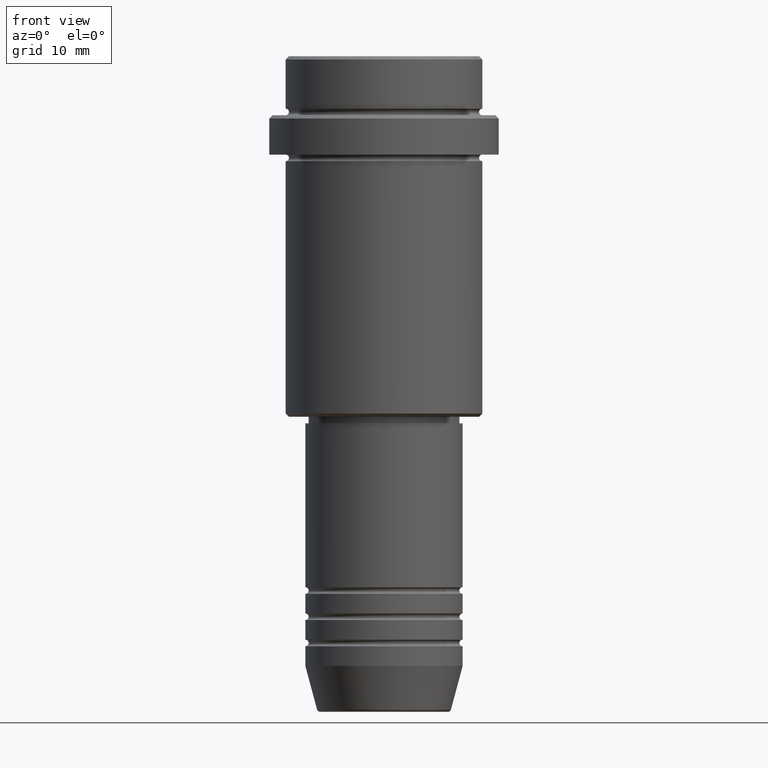
[diagram: clean part render]
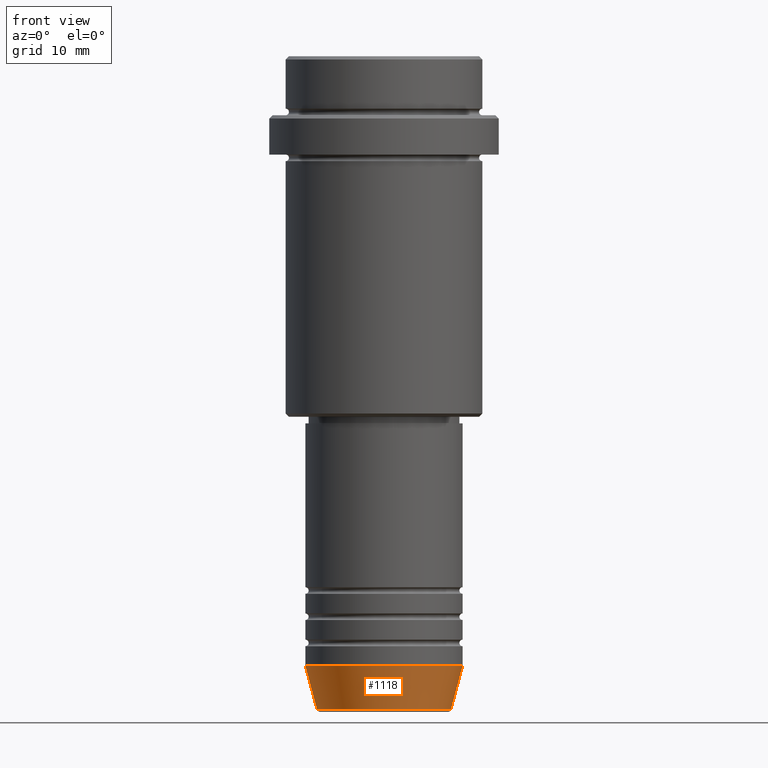
[diagram: same view with one face highlighted and labeled with its STEP entity id]
A machine part, front view. The second image highlights one B-rep face of the part: STEP entity #1118.
In plain terms, the highlighted conical surface has half-angle 15 deg.
Its self-contained STEP definition (entity closure, byte-faithful):
#62 = DIRECTION ( 'NONE',  ( 1.000000000000000000, 0.000000000000000000, 0.000000000000000000 ) ) ;
#69 = DIRECTION ( 'NONE',  ( -0.000000000000000000, -0.000000000000000000, 1.000000000000000000 ) ) ;
#74 = AXIS2_PLACEMENT_3D ( 'NONE', #937, #920, #359 ) ;
#116 = DIRECTION ( 'NONE',  ( -0.000000000000000000, -0.000000000000000000, 1.000000000000000000 ) ) ;
#123 = CARTESIAN_POINT ( 'NONE',  ( -10.22365507213718949, 1.360806402472382547E-15, -99.62940952255127058 ) ) ;
#140 = EDGE_CURVE ( 'NONE', #762, #642, #572, .T. ) ;
#224 = CONICAL_SURFACE ( 'NONE', #74, 12.00000000000000000, 0.2617993877991500740 ) ;
#299 = CARTESIAN_POINT ( 'NONE',  ( -12.00000000000000000, 1.469576158976823947E-15, -93.00000000000000000 ) ) ;
#301 = EDGE_CURVE ( 'NONE', #1207, #762, #1299, .T. ) ;
#359 = DIRECTION ( 'NONE',  ( 1.000000000000000000, 0.000000000000000000, 0.000000000000000000 ) ) ;
#416 = AXIS2_PLACEMENT_3D ( 'NONE', #645, #116, #560 ) ;
#420 = ORIENTED_EDGE ( 'NONE', *, *, #1385, .T. ) ;
#443 = DIRECTION ( 'NONE',  ( -0.2588190451025213501, 3.169619151431772337E-17, 0.9659258262890680902 ) ) ;
#457 = EDGE_LOOP ( 'NONE', ( #878, #850, #420, #1365 ) ) ;
#497 = FACE_OUTER_BOUND ( 'NONE', #457, .T. ) ;
#515 = CARTESIAN_POINT ( 'NONE',  ( 0.000000000000000000, 0.000000000000000000, -93.00000000000000000 ) ) ;
#560 = DIRECTION ( 'NONE',  ( 1.000000000000000000, 0.000000000000000000, 0.000000000000000000 ) ) ;
#572 = CIRCLE ( 'NONE', #799, 12.00000000000000000 ) ;
#635 = VECTOR ( 'NONE', #443, 1000.000000000000000 ) ;
#642 = VERTEX_POINT ( 'NONE', #1333 ) ;
#645 = CARTESIAN_POINT ( 'NONE',  ( 0.000000000000000000, 0.000000000000000000, -99.62940952255127058 ) ) ;
#672 = CARTESIAN_POINT ( 'NONE',  ( 10.22365507213718949, 0.000000000000000000, -99.62940952255127058 ) ) ;
#762 = VERTEX_POINT ( 'NONE', #1073 ) ;
#799 = AXIS2_PLACEMENT_3D ( 'NONE', #515, #69, #62 ) ;
#817 = DIRECTION ( 'NONE',  ( 0.2588190451025213501, 0.000000000000000000, 0.9659258262890680902 ) ) ;
#850 = ORIENTED_EDGE ( 'NONE', *, *, #1262, .T. ) ;
#878 = ORIENTED_EDGE ( 'NONE', *, *, #301, .F. ) ;
#920 = DIRECTION ( 'NONE',  ( -0.000000000000000000, -0.000000000000000000, 1.000000000000000000 ) ) ;
#929 = LINE ( 'NONE', #1017, #1273 ) ;
#937 = CARTESIAN_POINT ( 'NONE',  ( 0.000000000000000000, 0.000000000000000000, -93.00000000000000000 ) ) ;
#1017 = CARTESIAN_POINT ( 'NONE',  ( 12.00000000000000000, 0.000000000000000000, -93.00000000000000000 ) ) ;
#1036 = VERTEX_POINT ( 'NONE', #672 ) ;
#1073 = CARTESIAN_POINT ( 'NONE',  ( -12.00000000000000000, 1.469576158976823947E-15, -93.00000000000000000 ) ) ;
#1118 = ADVANCED_FACE ( 'NONE', ( #497 ), #224, .T. ) ;
#1207 = VERTEX_POINT ( 'NONE', #123 ) ;
#1224 = CIRCLE ( 'NONE', #416, 10.22365507213718949 ) ;
#1262 = EDGE_CURVE ( 'NONE', #1207, #1036, #1224, .T. ) ;
#1273 = VECTOR ( 'NONE', #817, 1000.000000000000000 ) ;
#1299 = LINE ( 'NONE', #299, #635 ) ;
#1333 = CARTESIAN_POINT ( 'NONE',  ( 12.00000000000000000, 0.000000000000000000, -93.00000000000000000 ) ) ;
#1365 = ORIENTED_EDGE ( 'NONE', *, *, #140, .F. ) ;
#1385 = EDGE_CURVE ( 'NONE', #1036, #642, #929, .T. ) ;